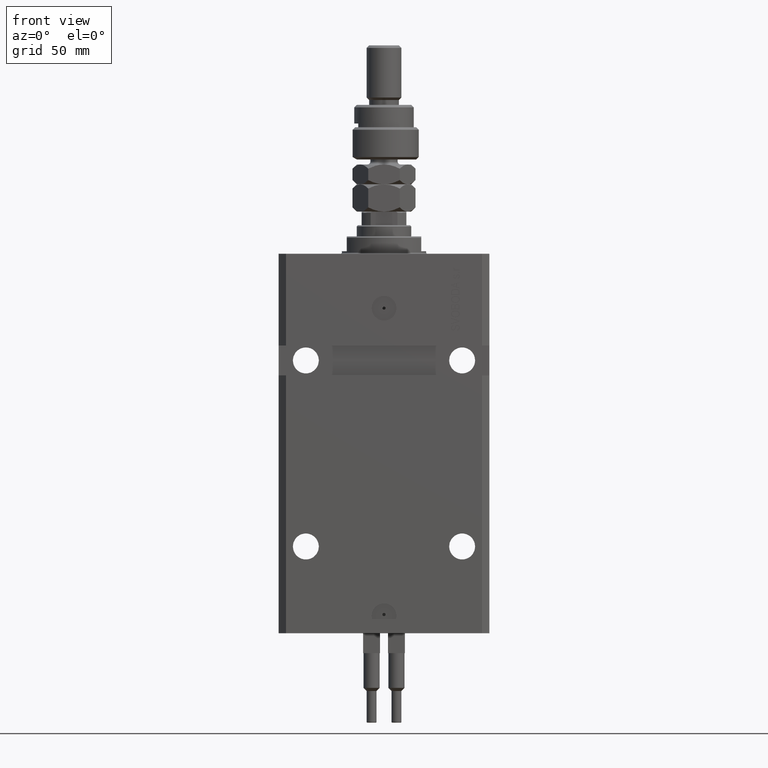
[diagram: clean part render]
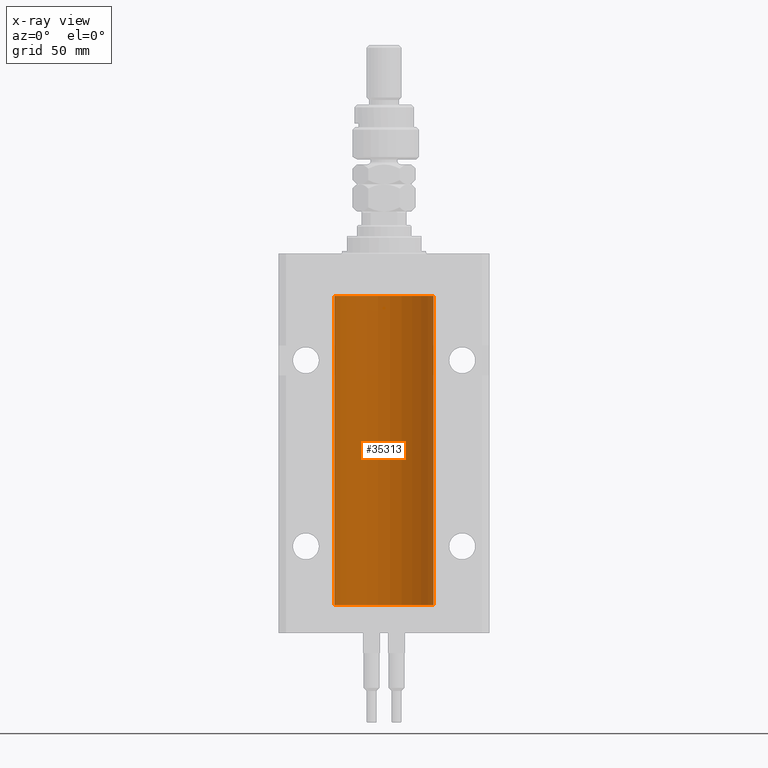
[diagram: x-ray — body ghosted, one internal face saturated and labeled with its STEP entity id]
A machine part, front view, then the same camera in x-ray: the body is ghosted and one INTERNAL B-rep face — a face not visible from any outside direction — is saturated and labeled: STEP entity #35313.
In plain terms, the highlighted cylindrical surface (partial cylindrical patch) has radius 20 mm, axis along (0, 0, 1).
Its self-contained STEP definition (entity closure, byte-faithful):
#24 = EDGE_CURVE ( 'NONE', #14076, #46547, #6081, .T. ) ;
#361 = CARTESIAN_POINT ( 'NONE',  ( -19.99947377218718358, 0.1636439183262808073, -138.3912636400466170 ) ) ;
#488 = LINE ( 'NONE', #28765, #9383 ) ;
#615 = CARTESIAN_POINT ( 'NONE',  ( -19.99999999999999645, 0.1631688615953307553, -139.6249999999998010 ) ) ;
#1581 = DIRECTION ( 'NONE',  ( -0.000000000000000000, -0.000000000000000000, 1.000000000000000000 ) ) ;
#1642 = ORIENTED_EDGE ( 'NONE', *, *, #25752, .T. ) ;
#1751 = CARTESIAN_POINT ( 'NONE',  ( 20.00000000000000000, 0.000000000000000000, -17.00000000000000000 ) ) ;
#2466 = EDGE_CURVE ( 'NONE', #49956, #32047, #41332, .T. ) ;
#3029 = EDGE_CURVE ( 'NONE', #43471, #20542, #24817, .T. ) ;
#3472 = CARTESIAN_POINT ( 'NONE',  ( -19.99766197842594906, 0.3150331617867667688, -23.45402070102505476 ) ) ;
#3484 = CYLINDRICAL_SURFACE ( 'NONE', #37970, 20.00000000000000000 ) ;
#3993 = CARTESIAN_POINT ( 'NONE',  ( -20.00000000000000000, 0.1631688615953320320, -24.62499999999985434 ) ) ;
#4196 = DIRECTION ( 'NONE',  ( -0.000000000000000000, -0.000000000000000000, 1.000000000000000000 ) ) ;
#4278 = CIRCLE ( 'NONE', #44784, 20.00000000000000000 ) ;
#4879 = DIRECTION ( 'NONE',  ( 0.000000000000000000, 0.000000000000000000, 1.000000000000000000 ) ) ;
#4962 = LINE ( 'NONE', #33513, #50797 ) ;
#4967 = CARTESIAN_POINT ( 'NONE',  ( -19.99023018003212471, 0.6250578794725500931, -24.16284809704970371 ) ) ;
#5864 = VECTOR ( 'NONE', #24936, 1000.000000000000000 ) ;
#5944 = CARTESIAN_POINT ( 'NONE',  ( 19.99023198964935588, 0.6249999999995818900, -138.8369638477980459 ) ) ;
#6081 = LINE ( 'NONE', #42050, #11676 ) ;
#6099 = CARTESIAN_POINT ( 'NONE',  ( 19.99023198964909298, 0.6250000000081508134, -23.99999999999910472 ) ) ;
#6170 = CARTESIAN_POINT ( 'NONE',  ( 19.99769474220010679, 0.3253030616682400233, -23.44140633897632142 ) ) ;
#7313 = EDGE_CURVE ( 'NONE', #45940, #14076, #4278, .T. ) ;
#7767 = CARTESIAN_POINT ( 'NONE',  ( 19.99638788807192924, 0.3844440352705415509, -139.4994805898647883 ) ) ;
#9259 = VECTOR ( 'NONE', #4196, 1000.000000000000000 ) ;
#9383 = VECTOR ( 'NONE', #24811, 1000.000000000000000 ) ;
#9389 = CARTESIAN_POINT ( 'NONE',  ( 20.00000000000010303, 3.555666311577537537E-13, -138.3749999999966178 ) ) ;
#9850 = B_SPLINE_CURVE_WITH_KNOTS ( 'NONE', 3,
 ( #38694, #30758, #10135, #6170, #46361, #22312 ),
 .UNSPECIFIED., .F., .F.,
 ( 4, 2, 4 ),
 ( 0.0009772989342736162956, 0.001465726722058837295, 0.001954154509844058078 ),
 .UNSPECIFIED. ) ;
#10135 = CARTESIAN_POINT ( 'NONE',  ( 19.99253733128256272, 0.5586305947778931191, -23.67476036735258305 ) ) ;
#11146 = CARTESIAN_POINT ( 'NONE',  ( -19.99947377218718714, 0.1636439183262877461, -23.39126364004656011 ) ) ;
#11676 = VECTOR ( 'NONE', #1581, 1000.000000000000000 ) ;
#12028 = CARTESIAN_POINT ( 'NONE',  ( 20.00000000000000000, -1.112928376255647276E-15, -24.62500000000000000 ) ) ;
#12271 = CARTESIAN_POINT ( 'NONE',  ( -19.99638934703457238, 0.3843678041337506568, -138.5004636297809952 ) ) ;
#12525 = CARTESIAN_POINT ( 'NONE',  ( -19.99253506710755346, 0.5587120480776690545, -139.3251162083025463 ) ) ;
#14076 = VERTEX_POINT ( 'NONE', #43148 ) ;
#15214 = DIRECTION ( 'NONE',  ( -0.000000000000000000, -0.000000000000000000, 1.000000000000000000 ) ) ;
#15587 = EDGE_CURVE ( 'NONE', #43610, #17421, #4962, .T. ) ;
#15638 = EDGE_CURVE ( 'NONE', #25434, #45580, #488, .T. ) ;
#15710 = CARTESIAN_POINT ( 'NONE',  ( -19.99023380173166231, 0.6249420416828387337, -138.8367079305639606 ) ) ;
#16357 = CARTESIAN_POINT ( 'NONE',  ( 20.00000000000010303, 3.555666311577537537E-13, -138.3749999999966178 ) ) ;
#16485 = CARTESIAN_POINT ( 'NONE',  ( 19.99023198964909298, 0.6250000000081585849, -138.9999999999990621 ) ) ;
#17421 = VERTEX_POINT ( 'NONE', #12028 ) ;
#17560 = CARTESIAN_POINT ( 'NONE',  ( 19.99023198964909298, 0.6250000000081585849, -138.9999999999990621 ) ) ;
#18001 = CARTESIAN_POINT ( 'NONE',  ( 19.99023198964934522, 0.6250000000002681189, -24.16311014829328840 ) ) ;
#18257 = B_SPLINE_CURVE_WITH_KNOTS ( 'NONE', 3,
 ( #38358, #46554, #41808, #26459, #34644, #29637, #18001, #6099 ),
 .UNSPECIFIED., .F., .F.,
 ( 4, 2, 2, 4 ),
 ( 2.229608604094221016E-18, 0.0002443247335684058086, 0.0004886494671368094489, 0.0009772989342736162956 ),
 .UNSPECIFIED. ) ;
#18439 = VERTEX_POINT ( 'NONE', #17560 ) ;
#18992 = CIRCLE ( 'NONE', #36596, 20.00000000000000000 ) ;
#19601 = CARTESIAN_POINT ( 'NONE',  ( -19.99023380173166231, 0.6249420416828462832, -23.83670793056396064 ) ) ;
#20119 = CARTESIAN_POINT ( 'NONE',  ( -19.99638934703457593, 0.3843678041337688644, -23.50046362978100944 ) ) ;
#20190 = CARTESIAN_POINT ( 'NONE',  ( -20.00000000000010303, 3.580159249456421507E-13, -139.6250000000033253 ) ) ;
#20542 = VERTEX_POINT ( 'NONE', #49364 ) ;
#20844 = CARTESIAN_POINT ( 'NONE',  ( -20.00000000000000000, 2.449293598294706513E-15, -141.5999999999999943 ) ) ;
#21088 = DIRECTION ( 'NONE',  ( -0.000000000000000000, -0.000000000000000000, 1.000000000000000000 ) ) ;
#21318 = B_SPLINE_CURVE_WITH_KNOTS ( 'NONE', 3,
 ( #44274, #35792, #361, #23908, #12271, #36830, #15710, #27855, #12525, #44779, #615, #20190 ),
 .UNSPECIFIED., .F., .F.,
 ( 4, 2, 2, 2, 2, 4 ),
 ( 5.247116368830962784E-19, 0.0002442693137305545852, 0.0004885386274611086283, 0.0009770772549221576255, 0.001465615882383206840, 0.001954154509844256270 ),
 .UNSPECIFIED. ) ;
#22047 = CARTESIAN_POINT ( 'NONE',  ( 19.99023198964909298, 0.6250000000081508134, -23.99999999999910472 ) ) ;
#22312 = CARTESIAN_POINT ( 'NONE',  ( 20.00000000000010303, 3.555666336392955914E-13, -23.37499999999667111 ) ) ;
#23903 = CARTESIAN_POINT ( 'NONE',  ( 19.99256353007439202, 0.5574106582031183033, -139.3263903518010522 ) ) ;
#23908 = CARTESIAN_POINT ( 'NONE',  ( -19.99766197842594195, 0.3150331617867615508, -138.4540207010250299 ) ) ;
#24091 = EDGE_CURVE ( 'NONE', #43471, #32047, #48378, .T. ) ;
#24168 = CARTESIAN_POINT ( 'NONE',  ( 19.99766100389833312, 0.3150982863324716665, -139.5459443824127561 ) ) ;
#24421 = CARTESIAN_POINT ( 'NONE',  ( 19.99947351343144319, 0.1636818329565261354, -139.6087285571564109 ) ) ;
#24811 = DIRECTION ( 'NONE',  ( -0.000000000000000000, -0.000000000000000000, 1.000000000000000000 ) ) ;
#24817 = LINE ( 'NONE', #20844, #9259 ) ;
#24936 = DIRECTION ( 'NONE',  ( -0.000000000000000000, -0.000000000000000000, 1.000000000000000000 ) ) ;
#25270 = ORIENTED_EDGE ( 'NONE', *, *, #15638, .T. ) ;
#25434 = VERTEX_POINT ( 'NONE', #44364 ) ;
#25716 = CARTESIAN_POINT ( 'NONE',  ( -20.00000000000000000, 2.449293598294706513E-15, -141.5999999999999943 ) ) ;
#25752 = EDGE_CURVE ( 'NONE', #45940, #50779, #51428, .T. ) ;
#26459 = CARTESIAN_POINT ( 'NONE',  ( 19.99766100389833667, 0.3150982863324735539, -24.54594438241279164 ) ) ;
#27383 = VECTOR ( 'NONE', #15214, 1000.000000000000000 ) ;
#27600 = CARTESIAN_POINT ( 'NONE',  ( 20.00000000000000355, 0.08261455565448021232, -139.6249999999999716 ) ) ;
#27787 = CARTESIAN_POINT ( 'NONE',  ( -19.99999999999999645, 0.08259581631026780002, -23.37500000000000000 ) ) ;
#27796 = DIRECTION ( 'NONE',  ( 1.000000000000000000, 0.000000000000000000, 0.000000000000000000 ) ) ;
#27855 = CARTESIAN_POINT ( 'NONE',  ( -19.99023018003212471, 0.6250578794725458742, -139.1628480970496753 ) ) ;
#28078 = ORIENTED_EDGE ( 'NONE', *, *, #34180, .T. ) ;
#28765 = CARTESIAN_POINT ( 'NONE',  ( 20.00000000000000000, 0.000000000000000000, -141.5999999999999943 ) ) ;
#29218 = CARTESIAN_POINT ( 'NONE',  ( 19.99253733128256272, 0.5586305947779011127, -138.6747603673525475 ) ) ;
#29637 = CARTESIAN_POINT ( 'NONE',  ( 19.99256353007439913, 0.5574106582031163049, -24.32639035180115172 ) ) ;
#30208 = B_SPLINE_CURVE_WITH_KNOTS ( 'NONE', 3,
 ( #45606, #5944, #29218, #45094, #33978, #9389 ),
 .UNSPECIFIED., .F., .F.,
 ( 4, 2, 4 ),
 ( 0.0009772989342736434007, 0.001465726722058881748, 0.001954154509844120095 ),
 .UNSPECIFIED. ) ;
#30698 = CARTESIAN_POINT ( 'NONE',  ( 0.000000000000000000, 0.000000000000000000, -17.00000000000000000 ) ) ;
#30758 = CARTESIAN_POINT ( 'NONE',  ( 19.99023198964935588, 0.6249999999995746736, -23.83696384779806721 ) ) ;
#30853 = ORIENTED_EDGE ( 'NONE', *, *, #31154, .T. ) ;
#31154 = EDGE_CURVE ( 'NONE', #17421, #45106, #18257, .T. ) ;
#31340 = CARTESIAN_POINT ( 'NONE',  ( 20.00000000000000000, 0.000000000000000000, -141.5999999999999943 ) ) ;
#31415 = B_SPLINE_CURVE_WITH_KNOTS ( 'NONE', 3,
 ( #31573, #27600, #24421, #24168, #7767, #23903, #32092, #16485 ),
 .UNSPECIFIED., .F., .F.,
 ( 4, 2, 2, 4 ),
 ( 2.118185448276490261E-18, 0.0002443247335684271674, 0.0004886494671368522748, 0.0009772989342736434007 ),
 .UNSPECIFIED. ) ;
#31573 = CARTESIAN_POINT ( 'NONE',  ( 20.00000000000000000, -2.179639976041390721E-15, -139.6249999999999716 ) ) ;
#31610 = ORIENTED_EDGE ( 'NONE', *, *, #34403, .T. ) ;
#31639 = ORIENTED_EDGE ( 'NONE', *, *, #3029, .F. ) ;
#31877 = ORIENTED_EDGE ( 'NONE', *, *, #15587, .T. ) ;
#32047 = VERTEX_POINT ( 'NONE', #44807 ) ;
#32092 = CARTESIAN_POINT ( 'NONE',  ( 19.99023198964934167, 0.6250000000002770006, -139.1631101482932422 ) ) ;
#32533 = CARTESIAN_POINT ( 'NONE',  ( -20.00000000000010303, 3.580159249456421507E-13, -139.6250000000033253 ) ) ;
#33174 = DIRECTION ( 'NONE',  ( 1.000000000000000000, 0.000000000000000000, 0.000000000000000000 ) ) ;
#33513 = CARTESIAN_POINT ( 'NONE',  ( 20.00000000000000000, 0.000000000000000000, -141.5999999999999943 ) ) ;
#33978 = CARTESIAN_POINT ( 'NONE',  ( 19.99999999999999645, 0.1631318418333188858, -138.3750000000001421 ) ) ;
#34180 = EDGE_CURVE ( 'NONE', #18439, #43610, #30208, .T. ) ;
#34403 = EDGE_CURVE ( 'NONE', #50779, #18439, #31415, .T. ) ;
#34644 = CARTESIAN_POINT ( 'NONE',  ( 19.99638788807193279, 0.3844440352705381092, -24.49948058986480959 ) ) ;
#35313 = ADVANCED_FACE ( 'NONE', ( #35991 ), #3484, .F. ) ;
#35723 = CARTESIAN_POINT ( 'NONE',  ( -19.99253506710754991, 0.5587120480776751608, -24.32511620830248589 ) ) ;
#35732 = CARTESIAN_POINT ( 'NONE',  ( 0.000000000000000000, 0.000000000000000000, -141.5999999999999943 ) ) ;
#35792 = CARTESIAN_POINT ( 'NONE',  ( -20.00000000000000000, 0.08259581631025542103, -138.3749999999999716 ) ) ;
#35991 = FACE_OUTER_BOUND ( 'NONE', #41756, .T. ) ;
#36240 = CARTESIAN_POINT ( 'NONE',  ( -19.99769349528941120, 0.3253804398728645242, -24.55855820727680339 ) ) ;
#36360 = CARTESIAN_POINT ( 'NONE',  ( 0.000000000000000000, 0.000000000000000000, -141.5999999999999943 ) ) ;
#36596 = AXIS2_PLACEMENT_3D ( 'NONE', #30698, #41560, #42078 ) ;
#36714 = ORIENTED_EDGE ( 'NONE', *, *, #2466, .F. ) ;
#36830 = CARTESIAN_POINT ( 'NONE',  ( -19.99256581701871482, 0.5573276956901845880, -138.6734856577095059 ) ) ;
#37970 = AXIS2_PLACEMENT_3D ( 'NONE', #35732, #51610, #27796 ) ;
#38358 = CARTESIAN_POINT ( 'NONE',  ( 20.00000000000000000, -1.112928376255647276E-15, -24.62500000000000000 ) ) ;
#38694 = CARTESIAN_POINT ( 'NONE',  ( 19.99023198964909298, 0.6250000000081508134, -23.99999999999910472 ) ) ;
#39028 = ORIENTED_EDGE ( 'NONE', *, *, #24, .F. ) ;
#40170 = CARTESIAN_POINT ( 'NONE',  ( -20.00000000000000000, -2.867584836844214272E-15, -23.37500000000000000 ) ) ;
#40236 = CARTESIAN_POINT ( 'NONE',  ( -20.00000000000000000, -2.867584836844214272E-15, -23.37500000000000000 ) ) ;
#41208 = CARTESIAN_POINT ( 'NONE',  ( -19.99256581701871482, 0.5573276956902001311, -23.67348565770948809 ) ) ;
#41332 = LINE ( 'NONE', #25716, #5864 ) ;
#41560 = DIRECTION ( 'NONE',  ( 0.000000000000000000, 0.000000000000000000, 1.000000000000000000 ) ) ;
#41756 = EDGE_LOOP ( 'NONE', ( #39028, #50296, #1642, #31610, #28078, #31877, #30853, #48976, #25270, #48667, #31639, #44466, #36714, #44675 ) ) ;
#41808 = CARTESIAN_POINT ( 'NONE',  ( 19.99947351343144319, 0.1636818329565326025, -24.60872855715643936 ) ) ;
#42050 = CARTESIAN_POINT ( 'NONE',  ( -20.00000000000000000, 2.449293598294706513E-15, -141.5999999999999943 ) ) ;
#42078 = DIRECTION ( 'NONE',  ( 1.000000000000000000, 0.000000000000000000, 0.000000000000000000 ) ) ;
#42265 = CARTESIAN_POINT ( 'NONE',  ( -20.00000000000000000, -1.756252550797319649E-14, -138.3749999999999716 ) ) ;
#43148 = CARTESIAN_POINT ( 'NONE',  ( -20.00000000000000000, 2.449293598294706513E-15, -141.5999999999999943 ) ) ;
#43232 = EDGE_CURVE ( 'NONE', #49956, #46547, #21318, .T. ) ;
#43471 = VERTEX_POINT ( 'NONE', #40170 ) ;
#43610 = VERTEX_POINT ( 'NONE', #16357 ) ;
#44274 = CARTESIAN_POINT ( 'NONE',  ( -20.00000000000000000, -1.756252550797319649E-14, -138.3749999999999716 ) ) ;
#44364 = CARTESIAN_POINT ( 'NONE',  ( 20.00000000000010303, 3.555666336392955914E-13, -23.37499999999667111 ) ) ;
#44466 = ORIENTED_EDGE ( 'NONE', *, *, #24091, .T. ) ;
#44675 = ORIENTED_EDGE ( 'NONE', *, *, #43232, .T. ) ;
#44779 = CARTESIAN_POINT ( 'NONE',  ( -19.99769349528941120, 0.3253804398728610270, -139.5585582072767750 ) ) ;
#44784 = AXIS2_PLACEMENT_3D ( 'NONE', #36360, #4879, #33174 ) ;
#44807 = CARTESIAN_POINT ( 'NONE',  ( -20.00000000000010303, 3.580159282543646009E-13, -24.62500000000332889 ) ) ;
#45088 = EDGE_CURVE ( 'NONE', #45106, #25434, #9850, .T. ) ;
#45094 = CARTESIAN_POINT ( 'NONE',  ( 19.99769474220010679, 0.3253030616682487941, -138.4414063389762646 ) ) ;
#45106 = VERTEX_POINT ( 'NONE', #22047 ) ;
#45395 = EDGE_CURVE ( 'NONE', #45580, #20542, #18992, .T. ) ;
#45580 = VERTEX_POINT ( 'NONE', #1751 ) ;
#45606 = CARTESIAN_POINT ( 'NONE',  ( 19.99023198964909298, 0.6250000000081585849, -138.9999999999990621 ) ) ;
#45940 = VERTEX_POINT ( 'NONE', #49282 ) ;
#46361 = CARTESIAN_POINT ( 'NONE',  ( 19.99999999999999645, 0.1631318418333148335, -23.37500000000016698 ) ) ;
#46547 = VERTEX_POINT ( 'NONE', #32533 ) ;
#46554 = CARTESIAN_POINT ( 'NONE',  ( 20.00000000000000000, 0.08261455565447775595, -24.62499999999998224 ) ) ;
#48378 = B_SPLINE_CURVE_WITH_KNOTS ( 'NONE', 3,
 ( #40236, #27787, #11146, #3472, #20119, #41208, #19601, #4967, #35723, #36240, #3993, #51855 ),
 .UNSPECIFIED., .F., .F.,
 ( 4, 2, 2, 2, 2, 4 ),
 ( 5.848927291235706941E-19, 0.0002442693137305304075, 0.0004885386274610601645, 0.0009770772549221123059, 0.001465615882383164339, 0.001954154509844215938 ),
 .UNSPECIFIED. ) ;
#48667 = ORIENTED_EDGE ( 'NONE', *, *, #45395, .T. ) ;
#48976 = ORIENTED_EDGE ( 'NONE', *, *, #45088, .T. ) ;
#49282 = CARTESIAN_POINT ( 'NONE',  ( 20.00000000000000000, 0.000000000000000000, -141.5999999999999943 ) ) ;
#49364 = CARTESIAN_POINT ( 'NONE',  ( -20.00000000000000000, 2.449293598294706513E-15, -17.00000000000000000 ) ) ;
#49573 = CARTESIAN_POINT ( 'NONE',  ( 20.00000000000000000, -2.179639976041390721E-15, -139.6249999999999716 ) ) ;
#49956 = VERTEX_POINT ( 'NONE', #42265 ) ;
#50296 = ORIENTED_EDGE ( 'NONE', *, *, #7313, .F. ) ;
#50779 = VERTEX_POINT ( 'NONE', #49573 ) ;
#50797 = VECTOR ( 'NONE', #21088, 1000.000000000000000 ) ;
#51428 = LINE ( 'NONE', #31340, #27383 ) ;
#51610 = DIRECTION ( 'NONE',  ( -0.000000000000000000, -0.000000000000000000, 1.000000000000000000 ) ) ;
#51855 = CARTESIAN_POINT ( 'NONE',  ( -20.00000000000010303, 3.580159282543646009E-13, -24.62500000000332889 ) ) ;